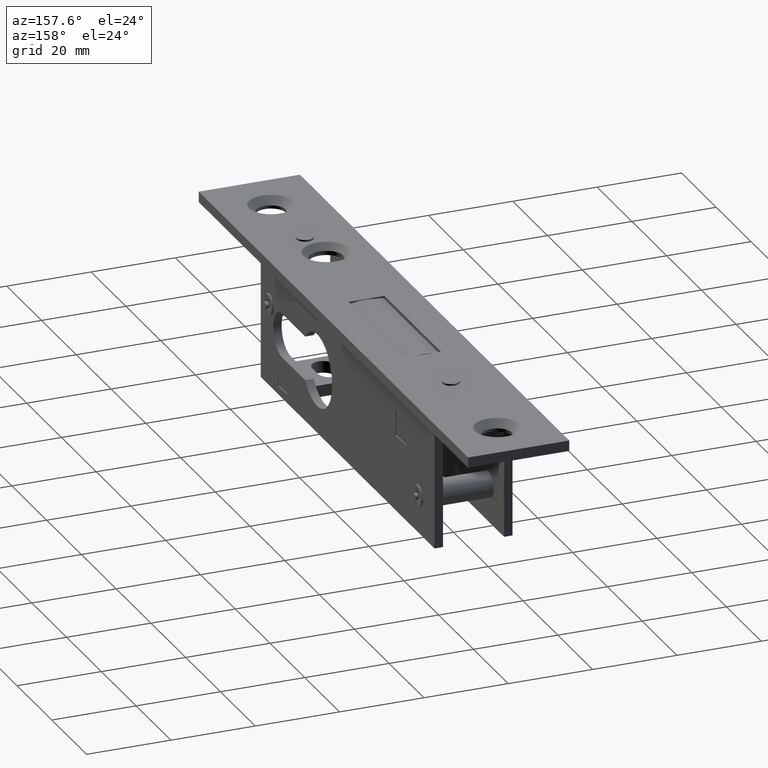
[diagram: clean part render]
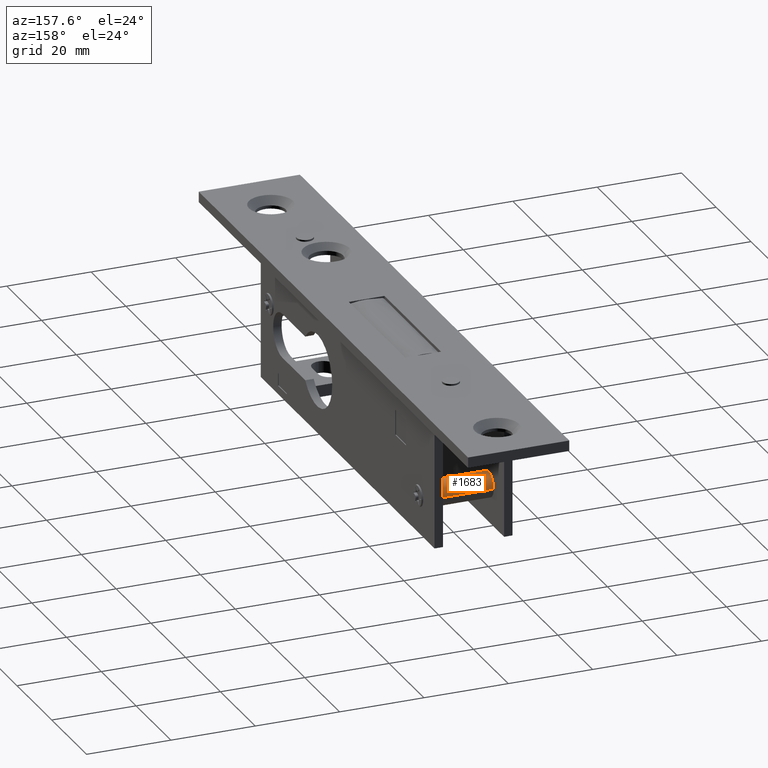
[diagram: same view with one face highlighted and labeled with its STEP entity id]
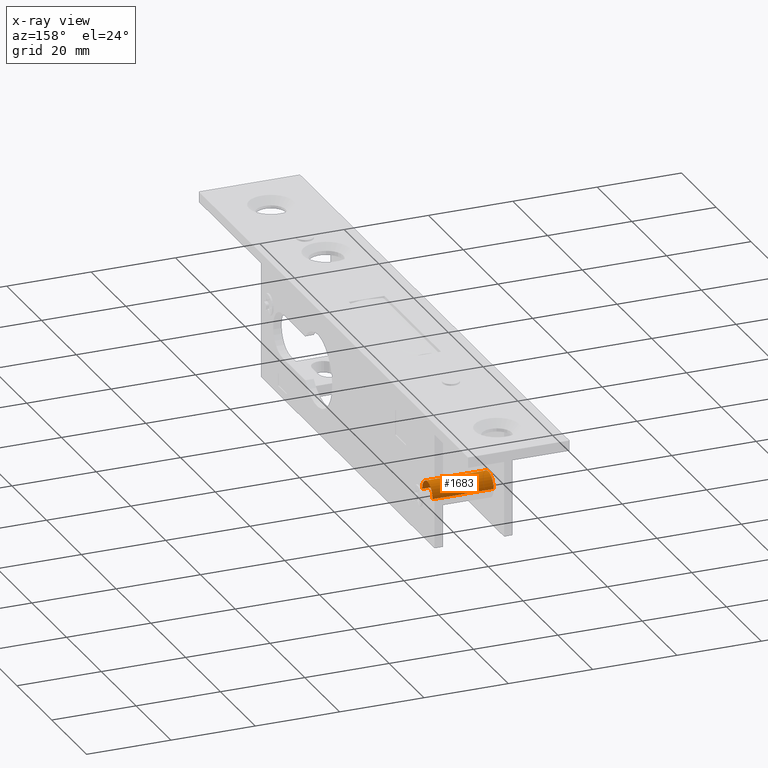
[diagram: x-ray of the same camera — body ghosted, the highlighted face saturated]
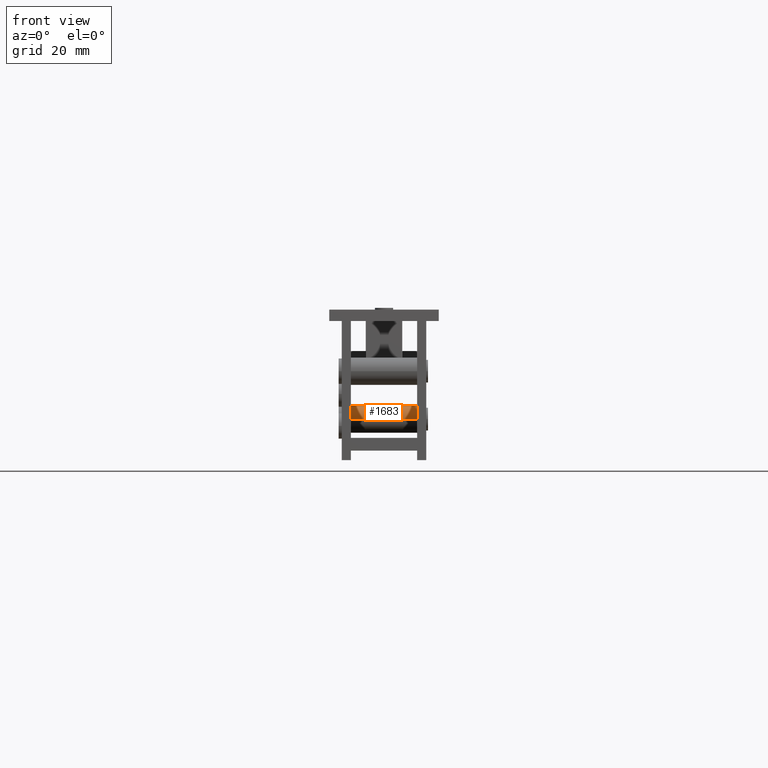
[diagram: same view with one face highlighted and labeled with its STEP entity id]
A machine part, auxiliary view. The second image highlights one B-rep face of the part: STEP entity #1683.
The next image is the same camera in x-ray: the body ghosted, the highlighted face saturated — about 0% of this face is hidden behind the body in this view.
A second angle (front view) of the same face is appended — the face is thin or edge-on in the first view.
In plain terms, the highlighted cylindrical surface (edge-blend (fillet) strip) has radius 3 mm, axis along (1, -0, -0).
Its self-contained STEP definition (entity closure, byte-faithful):
#355 = CIRCLE ( 'NONE', #3706, 3.000000000000002665 ) ;
#402 = CARTESIAN_POINT ( 'NONE',  ( -7.249999999999979572, 39.50000000000000000, -21.50000000000000000 ) ) ;
#858 = DIRECTION ( 'NONE',  ( 1.000000000000000000, -1.214306433183764966E-16, -0.000000000000000000 ) ) ;
#897 = DIRECTION ( 'NONE',  ( 1.000000000000000000, -1.214306433183764966E-16, -0.000000000000000000 ) ) ;
#1683 = ADVANCED_FACE ( 'NONE', ( #8037 ), #2319, .T. ) ;
#2227 = DIRECTION ( 'NONE',  ( 0.000000000000000000, -1.000000000000000000, 0.000000000000000000 ) ) ;
#2319 = CYLINDRICAL_SURFACE ( 'NONE', #14398, 3.000000000000002665 ) ;
#3706 = AXIS2_PLACEMENT_3D ( 'NONE', #5719, #4150, #15470 ) ;
#4150 = DIRECTION ( 'NONE',  ( -1.000000000000000000, 1.214306433183764966E-16, -0.000000000000000000 ) ) ;
#4262 = ORIENTED_EDGE ( 'NONE', *, *, #16771, .T. ) ;
#4793 = CARTESIAN_POINT ( 'NONE',  ( -12.00199999999997402, 39.50000000000000000, -21.50000000000000000 ) ) ;
#4953 = DIRECTION ( 'NONE',  ( 0.000000000000000000, 1.000000000000000000, 0.000000000000000000 ) ) ;
#5468 = EDGE_CURVE ( 'NONE', #8184, #14887, #355, .T. ) ;
#5719 = CARTESIAN_POINT ( 'NONE',  ( 7.250000000000023981, 42.50000000000000000, -21.50000000000000000 ) ) ;
#6602 = EDGE_CURVE ( 'NONE', #14483, #14887, #13931, .T. ) ;
#6973 = CARTESIAN_POINT ( 'NONE',  ( 7.250000000000023981, 45.50000000000000711, -21.50000000000000000 ) ) ;
#7238 = CARTESIAN_POINT ( 'NONE',  ( -7.249999999999979572, 45.50000000000000711, -21.50000000000000000 ) ) ;
#7743 = DIRECTION ( 'NONE',  ( 1.000000000000000000, -1.214306433183764966E-16, -0.000000000000000000 ) ) ;
#8037 = FACE_OUTER_BOUND ( 'NONE', #11359, .T. ) ;
#8184 = VERTEX_POINT ( 'NONE', #9953 ) ;
#8390 = ORIENTED_EDGE ( 'NONE', *, *, #6602, .F. ) ;
#9083 = ORIENTED_EDGE ( 'NONE', *, *, #14681, .T. ) ;
#9338 = CARTESIAN_POINT ( 'NONE',  ( -12.00199999999997402, 42.50000000000000000, -21.50000000000000000 ) ) ;
#9953 = CARTESIAN_POINT ( 'NONE',  ( 7.250000000000023981, 39.50000000000000000, -21.50000000000000000 ) ) ;
#10638 = VECTOR ( 'NONE', #858, 1000.000000000000000 ) ;
#11359 = EDGE_LOOP ( 'NONE', ( #9083, #4262, #14288, #8390 ) ) ;
#12813 = LINE ( 'NONE', #4793, #10638 ) ;
#13727 = VECTOR ( 'NONE', #13953, 1000.000000000000000 ) ;
#13931 = LINE ( 'NONE', #16683, #13727 ) ;
#13953 = DIRECTION ( 'NONE',  ( 1.000000000000000000, -1.214306433183764966E-16, -0.000000000000000000 ) ) ;
#14288 = ORIENTED_EDGE ( 'NONE', *, *, #5468, .T. ) ;
#14398 = AXIS2_PLACEMENT_3D ( 'NONE', #9338, #897, #4953 ) ;
#14483 = VERTEX_POINT ( 'NONE', #7238 ) ;
#14554 = CIRCLE ( 'NONE', #14836, 3.000000000000002665 ) ;
#14681 = EDGE_CURVE ( 'NONE', #14483, #17232, #14554, .T. ) ;
#14836 = AXIS2_PLACEMENT_3D ( 'NONE', #16104, #7743, #2227 ) ;
#14887 = VERTEX_POINT ( 'NONE', #6973 ) ;
#15470 = DIRECTION ( 'NONE',  ( 0.000000000000000000, 1.000000000000000000, 0.000000000000000000 ) ) ;
#16104 = CARTESIAN_POINT ( 'NONE',  ( -7.249999999999979572, 42.50000000000000000, -21.50000000000000000 ) ) ;
#16683 = CARTESIAN_POINT ( 'NONE',  ( -12.00199999999997402, 45.50000000000000711, -21.50000000000000000 ) ) ;
#16771 = EDGE_CURVE ( 'NONE', #17232, #8184, #12813, .T. ) ;
#17232 = VERTEX_POINT ( 'NONE', #402 ) ;